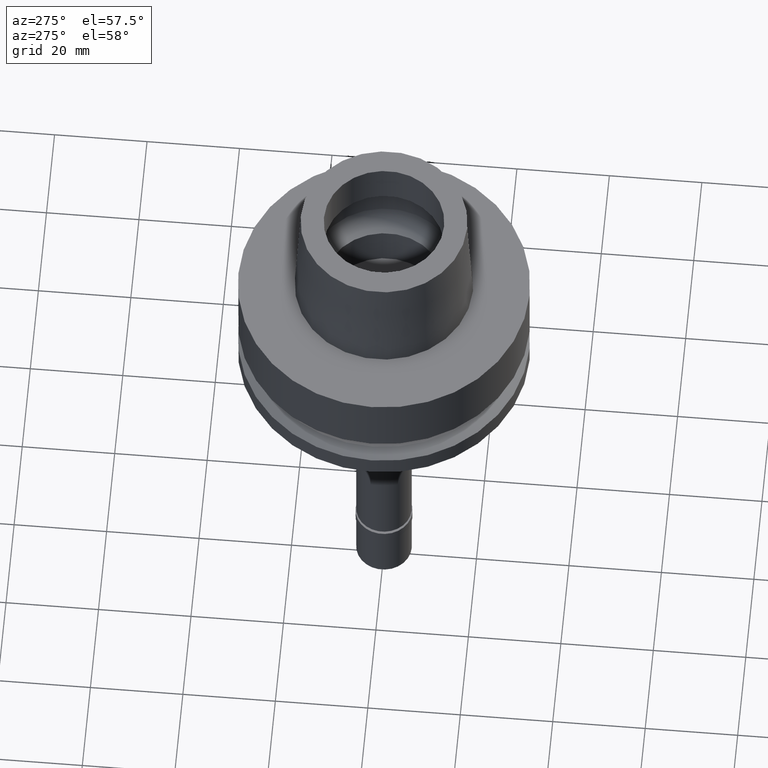
[diagram: clean part render]
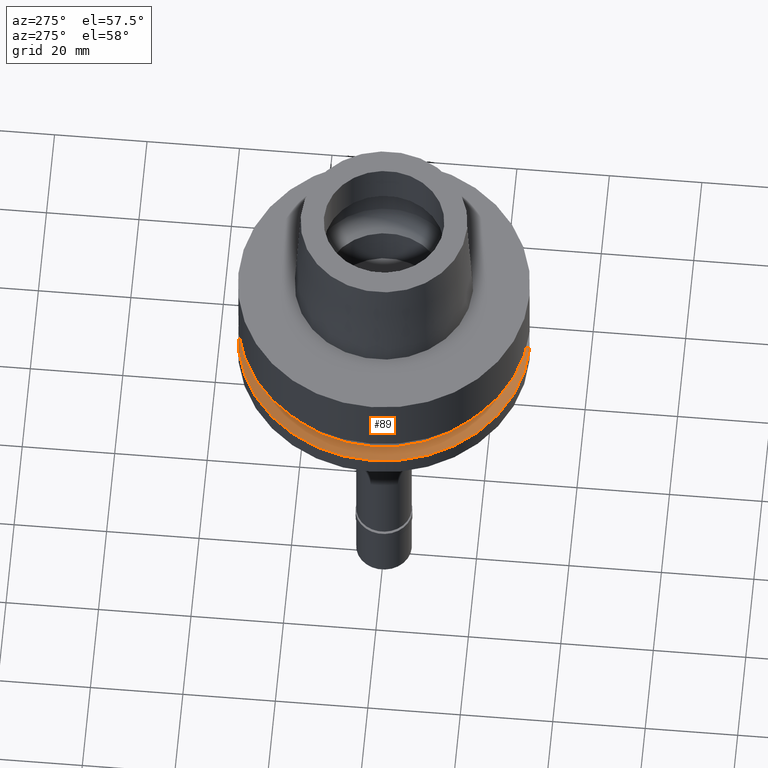
[diagram: same view with one face highlighted and labeled with its STEP entity id]
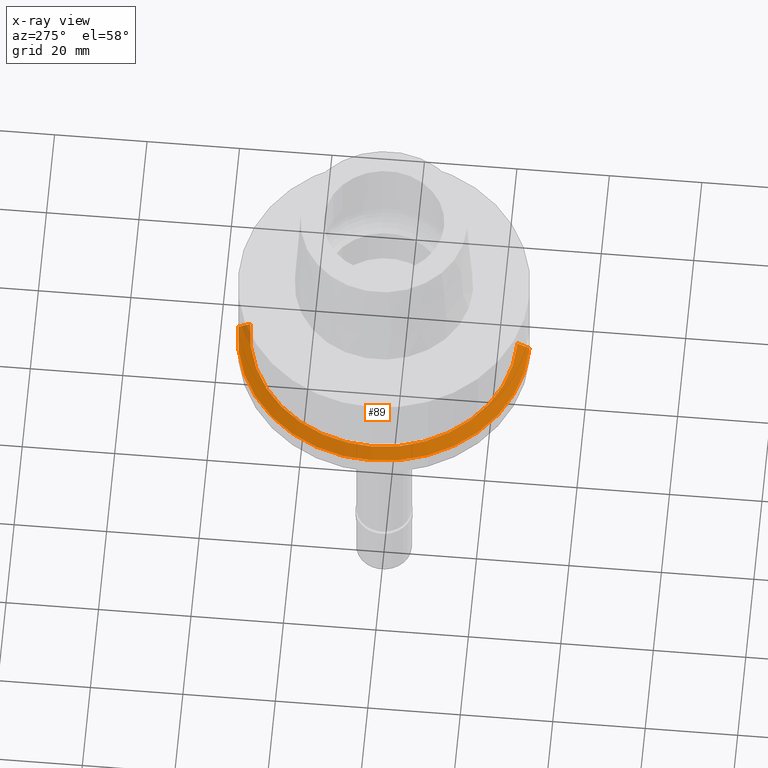
[diagram: x-ray of the same camera — body ghosted, the highlighted face saturated]
A machine part, auxiliary view. The second image highlights one B-rep face of the part: STEP entity #89.
The next image is the same camera in x-ray: the body ghosted, the highlighted face saturated — about 2% of this face is hidden behind the body in this view.
In plain terms, the highlighted conical surface has half-angle 60 deg.
Its self-contained STEP definition (entity closure, byte-faithful):
#22 = VERTEX_POINT ( 'NONE', #1270 ) ;
#35 = VERTEX_POINT ( 'NONE', #2341 ) ;
#66 = DIRECTION ( 'NONE',  ( 0.0000000000000000000, 0.0000000000000000000, -1.000000000000000000 ) ) ;
#89 = ADVANCED_FACE ( 'NONE', ( #964 ), #1926, .T. ) ;
#152 = CARTESIAN_POINT ( 'NONE',  ( 0.0000000000000000000, -28.89759526419000224, -19.87500000000000000 ) ) ;
#162 = EDGE_CURVE ( 'NONE', #35, #2052, #2421, .T. ) ;
#396 = CIRCLE ( 'NONE', #2249, 28.89759526419000224 ) ;
#453 = LINE ( 'NONE', #2414, #2529 ) ;
#537 = CARTESIAN_POINT ( 'NONE',  ( 0.0000000000000000000, 28.89759526419000224, -19.87500000000000000 ) ) ;
#561 = LINE ( 'NONE', #152, #2385 ) ;
#709 = DIRECTION ( 'NONE',  ( 0.0000000000000000000, -1.000000000000000000, 0.0000000000000000000 ) ) ;
#802 = CARTESIAN_POINT ( 'NONE',  ( 0.0000000000000000000, 0.0000000000000000000, -19.87500000000000000 ) ) ;
#964 = FACE_OUTER_BOUND ( 'NONE', #2382, .T. ) ;
#1005 = CARTESIAN_POINT ( 'NONE',  ( 0.0000000000000000000, 31.50000000000000000, -21.37749907476000288 ) ) ;
#1010 = DIRECTION ( 'NONE',  ( 0.0000000000000000000, -1.000000000000000000, 0.0000000000000000000 ) ) ;
#1138 = ORIENTED_EDGE ( 'NONE', *, *, #2726, .T. ) ;
#1270 = CARTESIAN_POINT ( 'NONE',  ( 0.0000000000000000000, -28.89759526419000224, -19.87500000000000000 ) ) ;
#1318 = ORIENTED_EDGE ( 'NONE', *, *, #162, .F. ) ;
#1403 = DIRECTION ( 'NONE',  ( 0.0000000000000000000, -0.8660254037843856390, -0.5000000000000918154 ) ) ;
#1423 = ORIENTED_EDGE ( 'NONE', *, *, #1868, .T. ) ;
#1759 = DIRECTION ( 'NONE',  ( 0.0000000000000000000, 0.8660254037843856390, -0.5000000000000918154 ) ) ;
#1810 = CARTESIAN_POINT ( 'NONE',  ( 0.0000000000000000000, 0.0000000000000000000, -20.62624953738000144 ) ) ;
#1835 = AXIS2_PLACEMENT_3D ( 'NONE', #2048, #2311, #1010 ) ;
#1868 = EDGE_CURVE ( 'NONE', #22, #2231, #396, .T. ) ;
#1926 = CONICAL_SURFACE ( 'NONE', #2158, 30.19879763209999979, 1.047197551196400456 ) ;
#2048 = CARTESIAN_POINT ( 'NONE',  ( 0.0000000000000000000, 0.0000000000000000000, -21.37749907476000288 ) ) ;
#2052 = VERTEX_POINT ( 'NONE', #1005 ) ;
#2117 = DIRECTION ( 'NONE',  ( 0.0000000000000000000, -1.000000000000000000, 0.0000000000000000000 ) ) ;
#2158 = AXIS2_PLACEMENT_3D ( 'NONE', #1810, #66, #709 ) ;
#2161 = EDGE_CURVE ( 'NONE', #22, #35, #561, .T. ) ;
#2231 = VERTEX_POINT ( 'NONE', #537 ) ;
#2249 = AXIS2_PLACEMENT_3D ( 'NONE', #802, #2527, #2117 ) ;
#2311 = DIRECTION ( 'NONE',  ( 0.0000000000000000000, 0.0000000000000000000, -1.000000000000000000 ) ) ;
#2341 = CARTESIAN_POINT ( 'NONE',  ( 0.0000000000000000000, -31.50000000000000000, -21.37749907476000288 ) ) ;
#2382 = EDGE_LOOP ( 'NONE', ( #1318, #2736, #1423, #1138 ) ) ;
#2385 = VECTOR ( 'NONE', #1403, 1000.000000000000000 ) ;
#2414 = CARTESIAN_POINT ( 'NONE',  ( 0.0000000000000000000, 28.89759526419000224, -19.87500000000000000 ) ) ;
#2421 = CIRCLE ( 'NONE', #1835, 31.50000000000000000 ) ;
#2527 = DIRECTION ( 'NONE',  ( 0.0000000000000000000, 0.0000000000000000000, -1.000000000000000000 ) ) ;
#2529 = VECTOR ( 'NONE', #1759, 1000.000000000000000 ) ;
#2726 = EDGE_CURVE ( 'NONE', #2231, #2052, #453, .T. ) ;
#2736 = ORIENTED_EDGE ( 'NONE', *, *, #2161, .F. ) ;